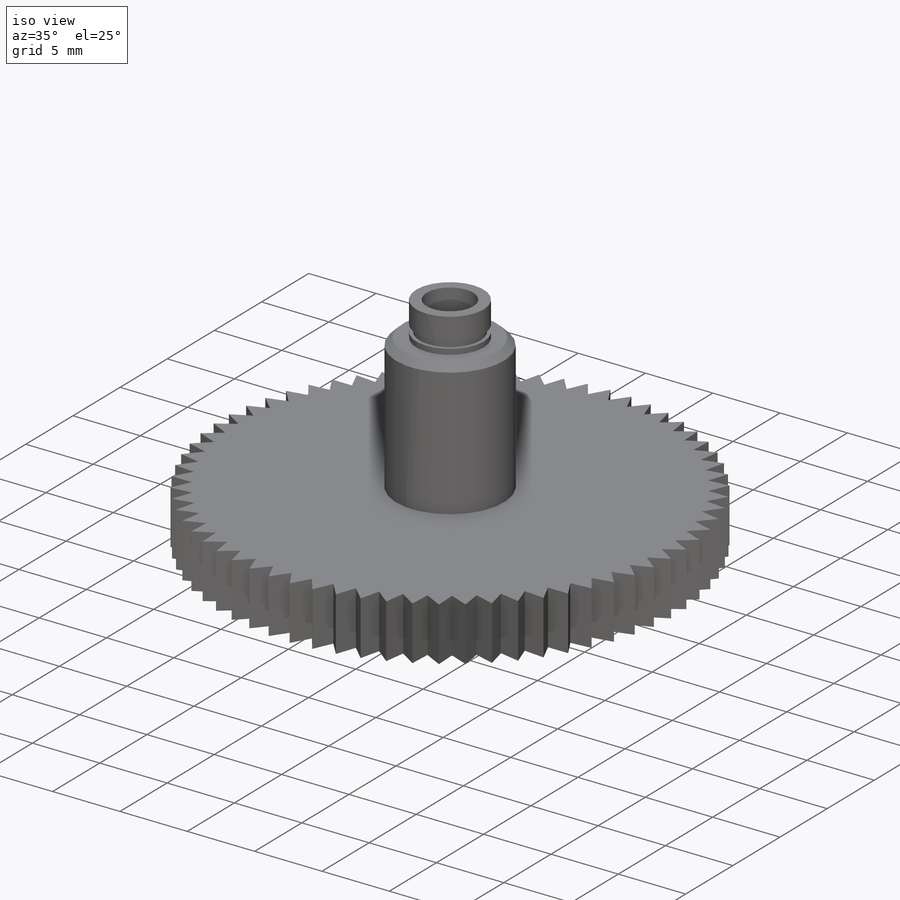
[diagram: iso view]
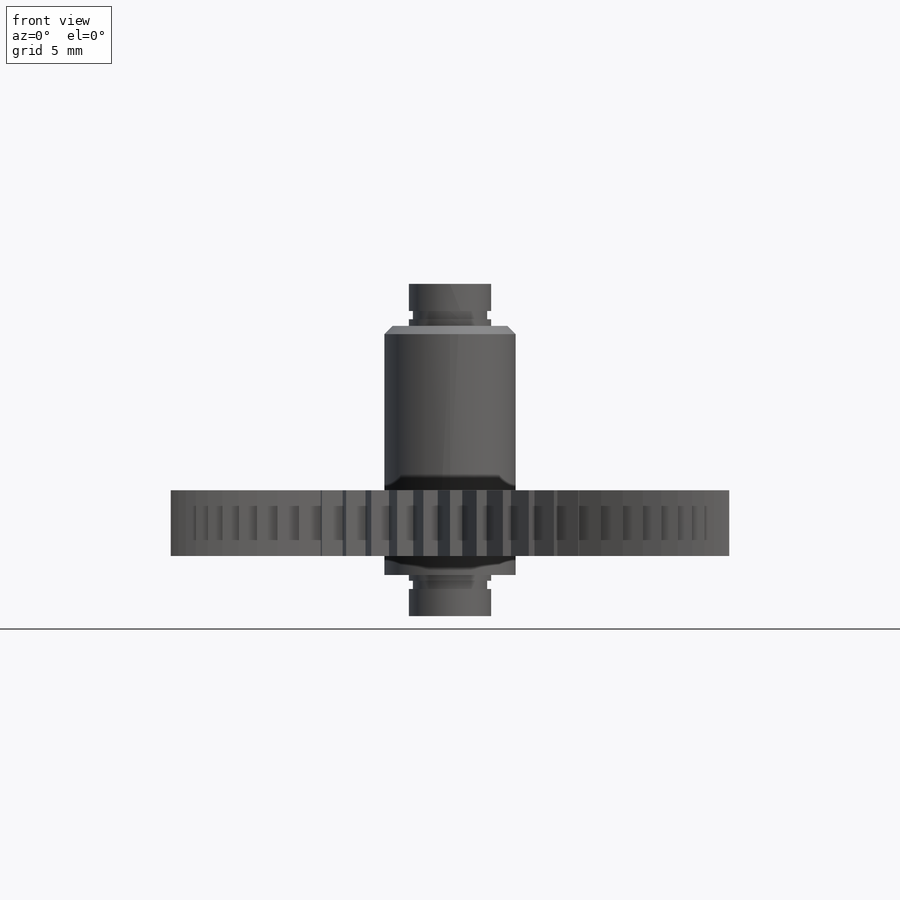
[diagram: front view]
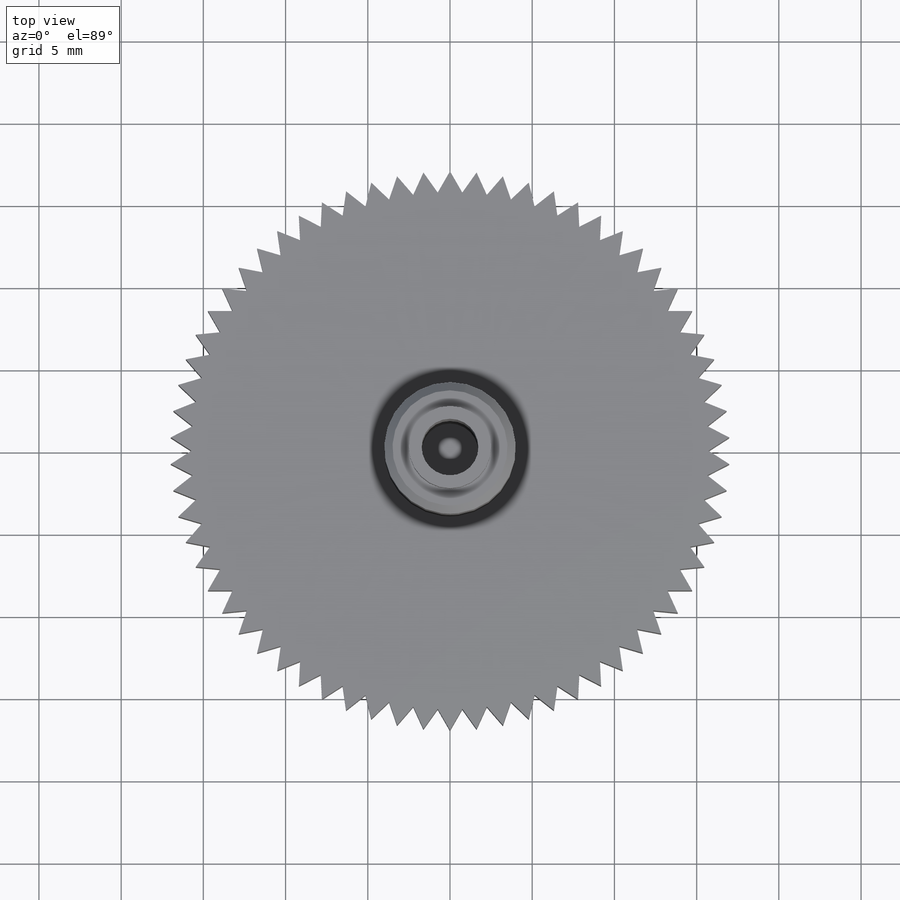
[diagram: top view]
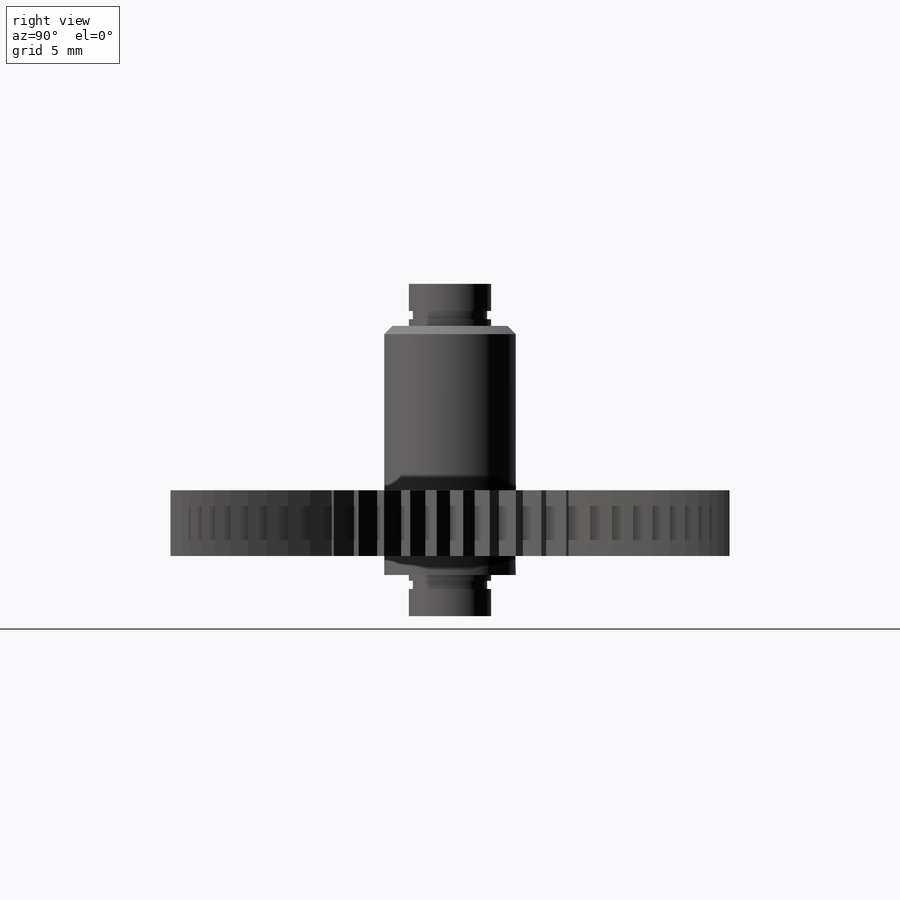
[diagram: right view]
SOLIDWORKS PART (.sldprt)
format: sldprt  version: not decoded by parser v0  size: 428,032 bytes
history: native  units: mm
features: sketch x9, cut_extrude x5, extrude x4, material x1, chamfer x1 (+13 scaffold rows collapsed)
feature tree (33):
  scaffold x13  (default folders/planes/origin — collapsed)
  material  "Material <not specified>"
  sketch  "Sketch1"  dims[c1.D1=34.0mm c1.D2=1.275mm c1.D3=1.275mm c2.D3=30.0deg c2.D4=1.275mm c2.D5=~1.104182mm c3.D5=30.0deg c3.D2=66.0]
  extrude  "Boss-Extrude1"  Depth=4mm
  sketch  "Sketch2"  dims[D1=8.0mm]
  extrude  "Boss-Extrude2"  Depth=12.55mm
  sketch  "Sketch3"  dims[D1=5.0mm]
  cut_extrude  "Cut-Extrude1"  Depth=2.55mm
  sketch  "Sketch4"  dims[D1=3.45mm]
  cut_extrude  "Cut-Extrude2"  [1 undecoded]
  sketch  "Sketch5"
  cut_extrude  "Cut-Extrude3"  Depth=0.5mm
  chamfer  "Chamfer1"  Distance=0.5mm Angle=45deg
  sketch  "Sketch6"
  extrude  "Boss-Extrude3"  Depth=3.65mm
  sketch  "Sketch7"  dims[D1=5.0mm]
  cut_extrude  "Cut-Extrude5"  Depth=2.5mm
  sketch  "Sketch8"
  cut_extrude  "Cut-Extrude6"  Depth=0.5mm
  sketch  "Sketch9"  dims[D1=8.0mm]
  extrude  "Boss-Extrude4"  [1 undecoded]
decode coverage: 14 of 19 modeling features carry decoded parameters
note: ~ marks probable driven/reference dimensions
note: 2 parameter values undecoded
note: suppression state not decoded; provenance and decode notes live in map.json
